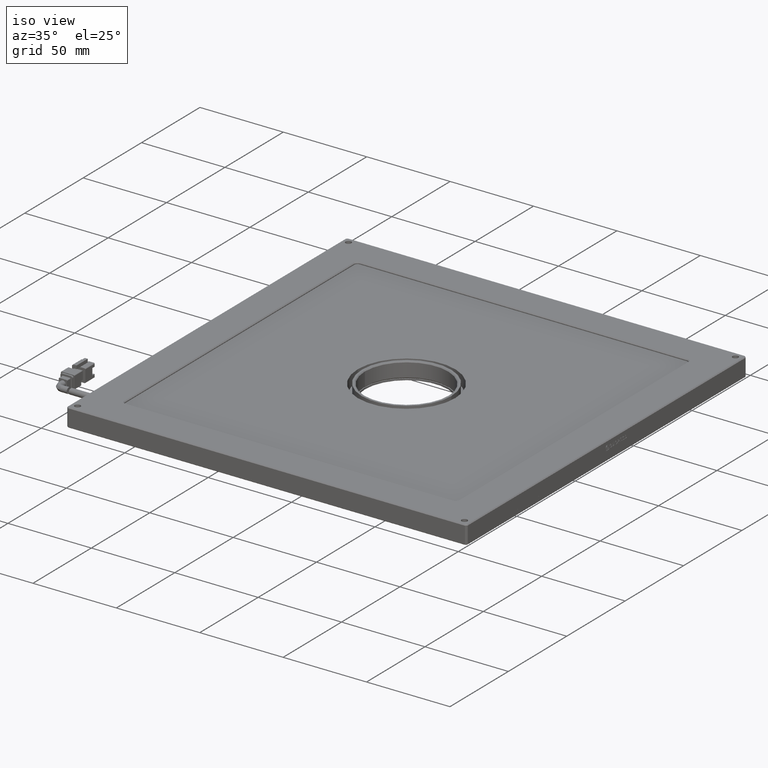
[diagram: clean part render]
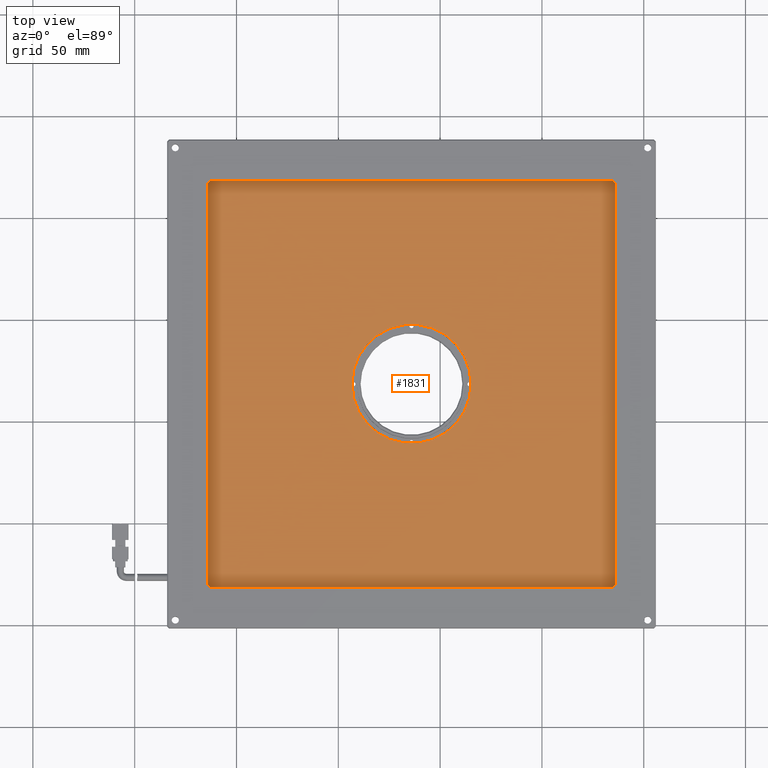
[diagram: tour spotlight — one face highlighted and labeled with its STEP entity id]
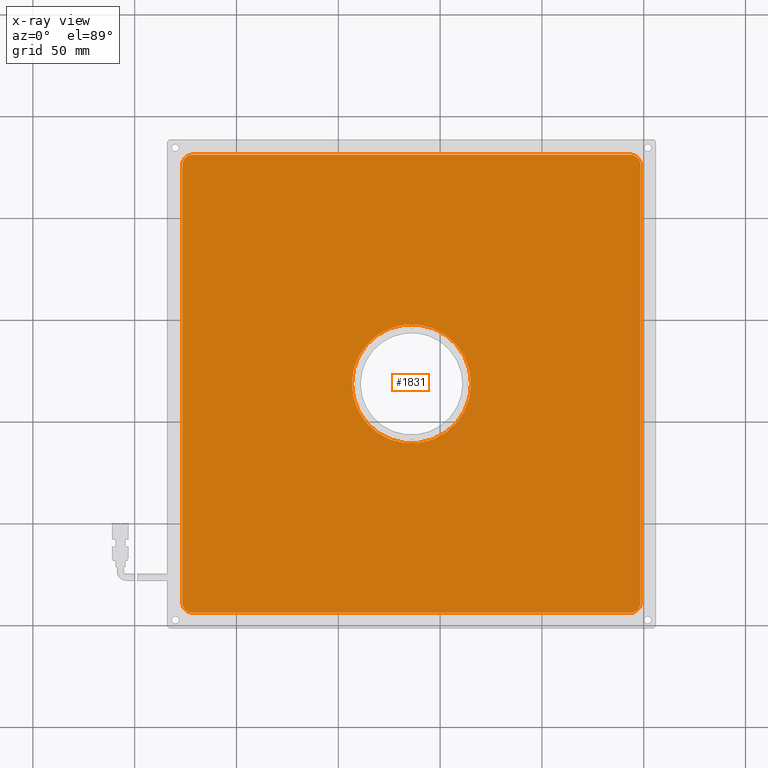
[diagram: x-ray of the same camera — body ghosted, this tour face saturated]
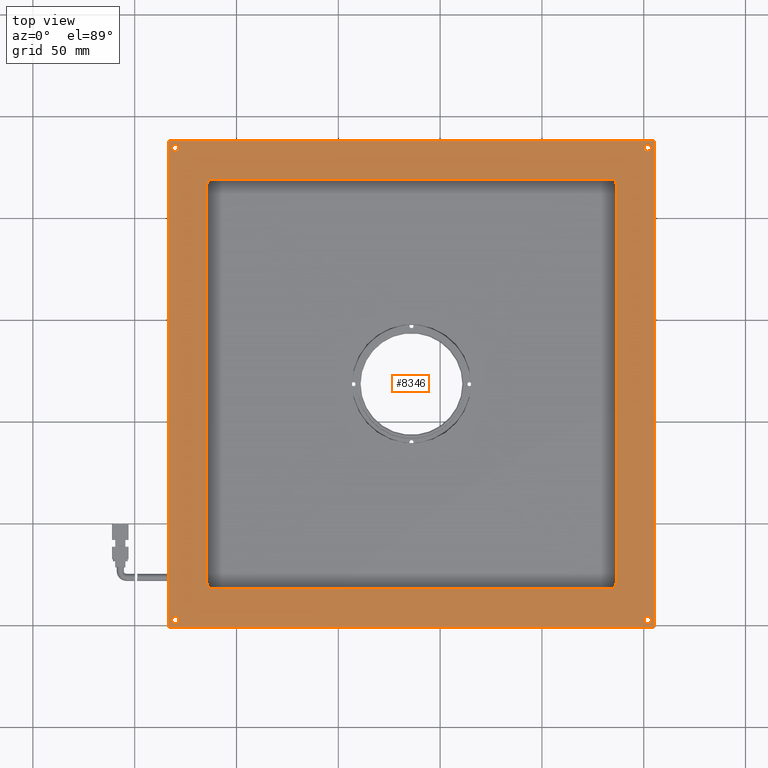
[diagram: tour spotlight — one face highlighted and labeled with its STEP entity id]
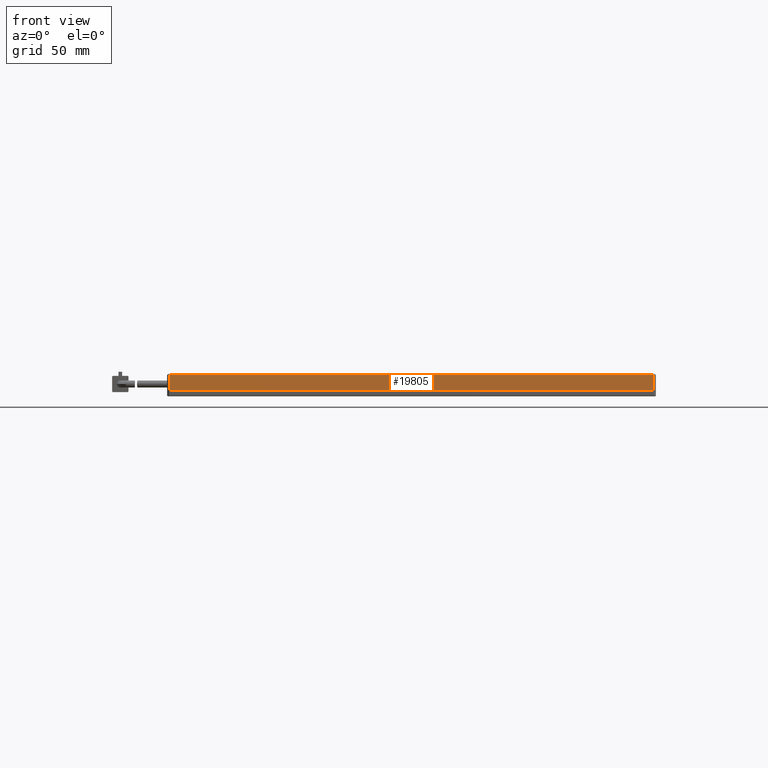
[diagram: tour spotlight — one face highlighted and labeled with its STEP entity id]
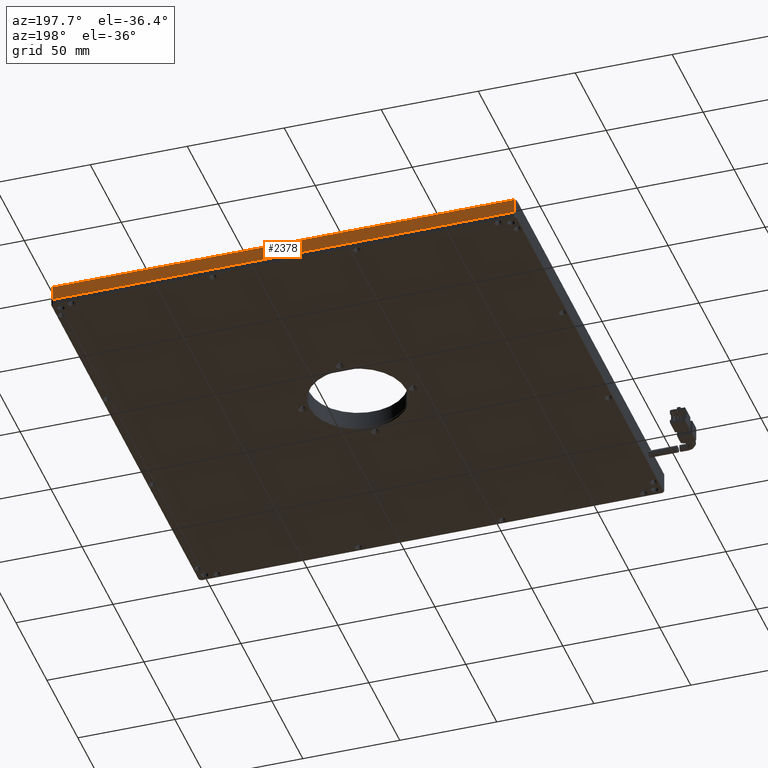
[diagram: tour spotlight — one face highlighted and labeled with its STEP entity id]
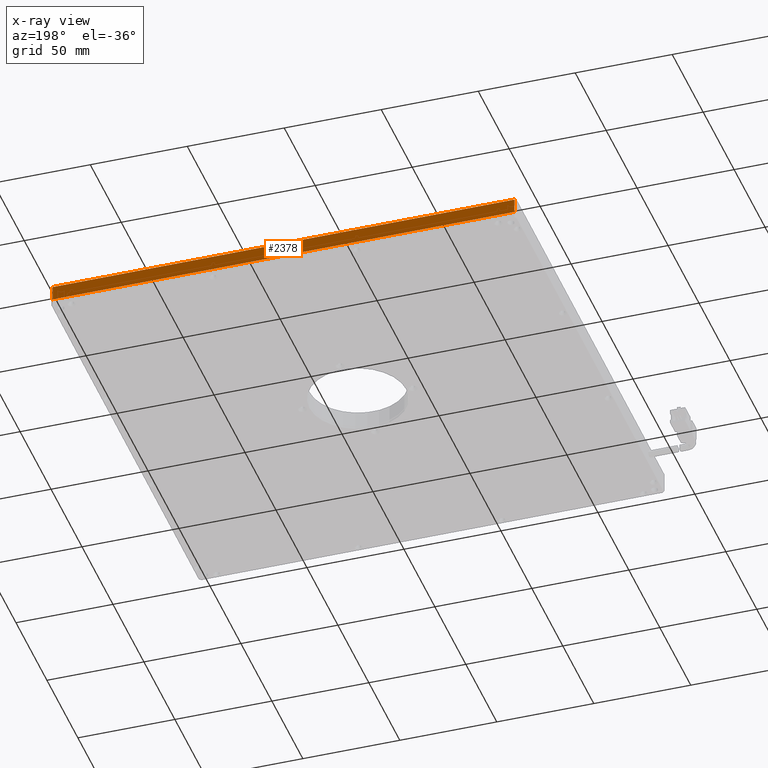
[diagram: x-ray of the same camera — body ghosted, this tour face saturated]
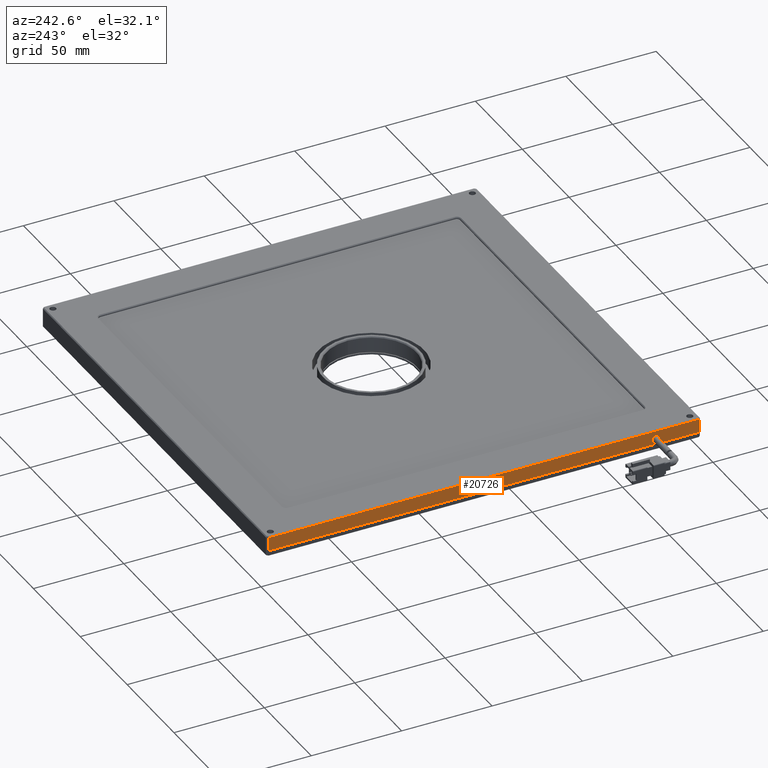
[diagram: tour spotlight — one face highlighted and labeled with its STEP entity id]
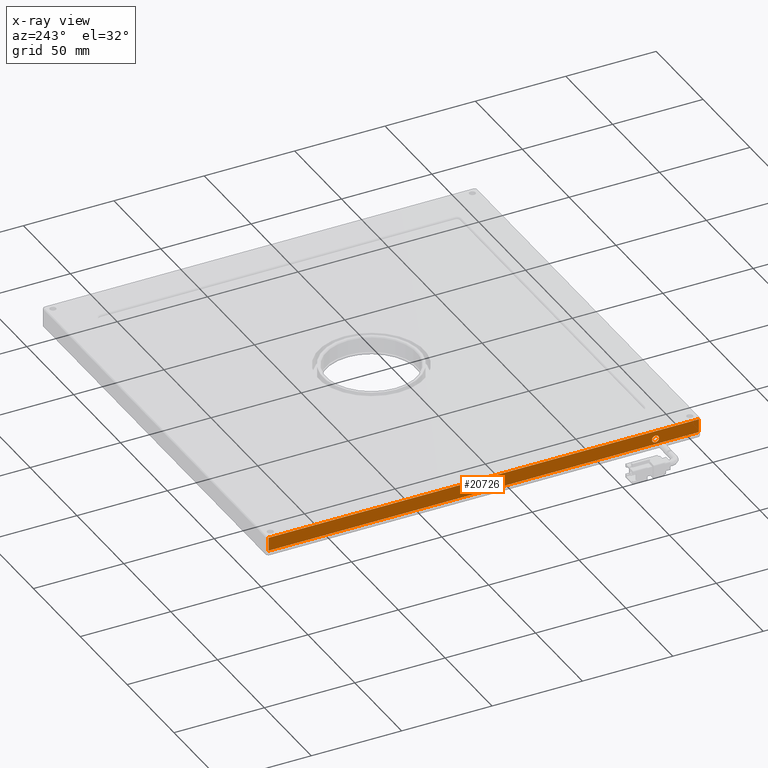
[diagram: x-ray of the same camera — body ghosted, this tour face saturated]
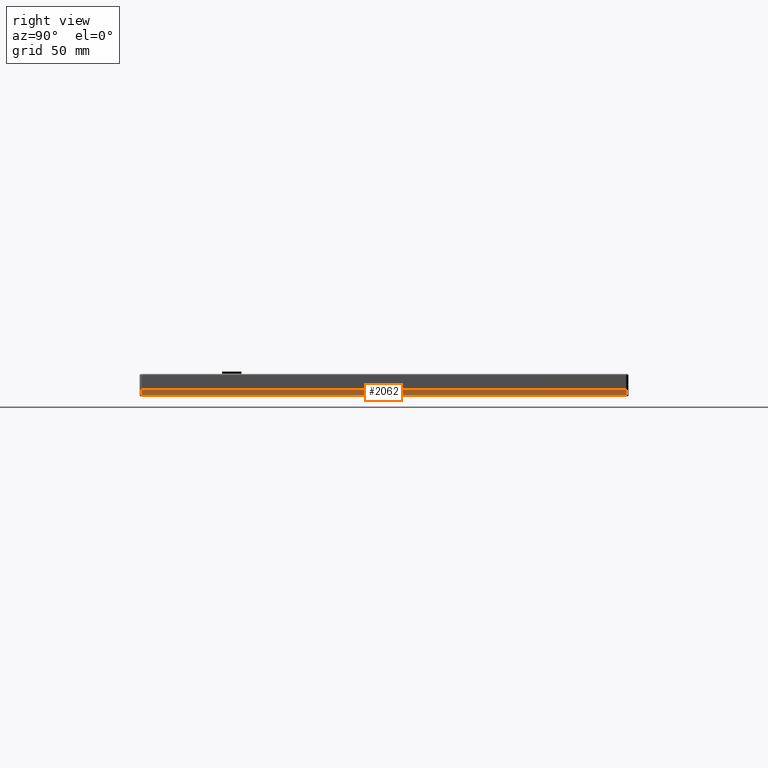
[diagram: tour spotlight — one face highlighted and labeled with its STEP entity id]
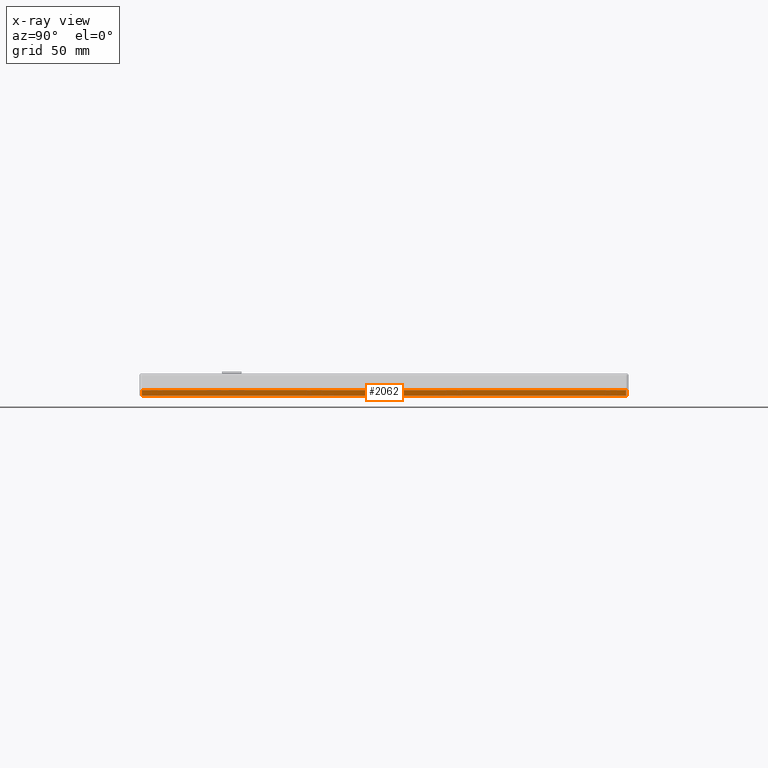
[diagram: x-ray of the same camera — body ghosted, this tour face saturated]
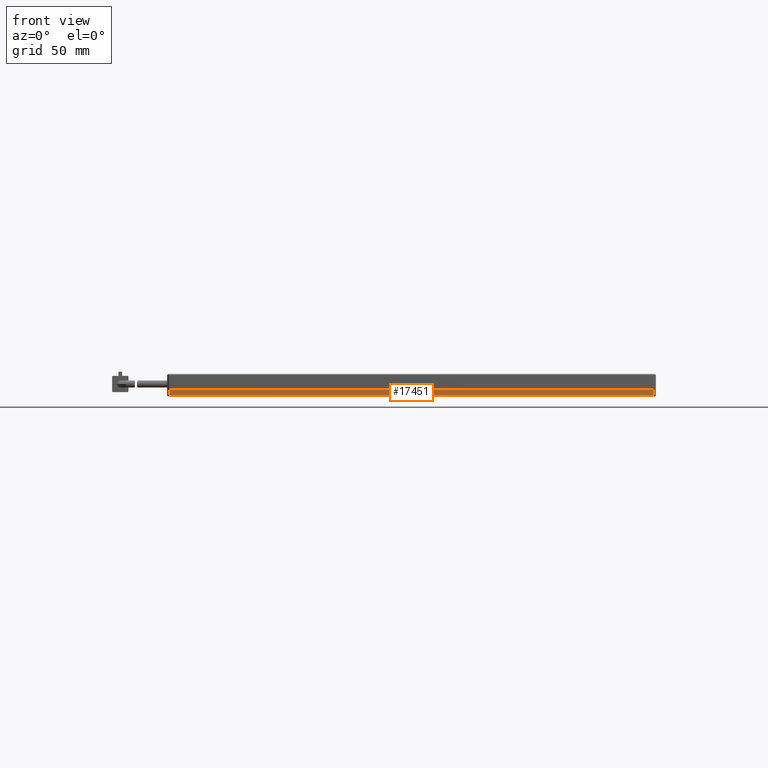
[diagram: tour spotlight — one face highlighted and labeled with its STEP entity id]
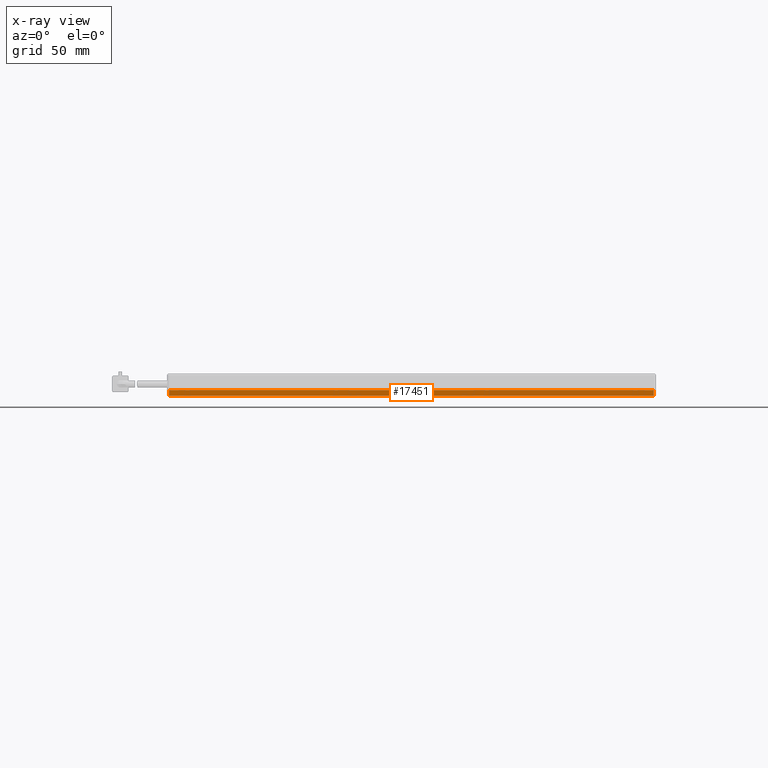
[diagram: x-ray of the same camera — body ghosted, this tour face saturated]
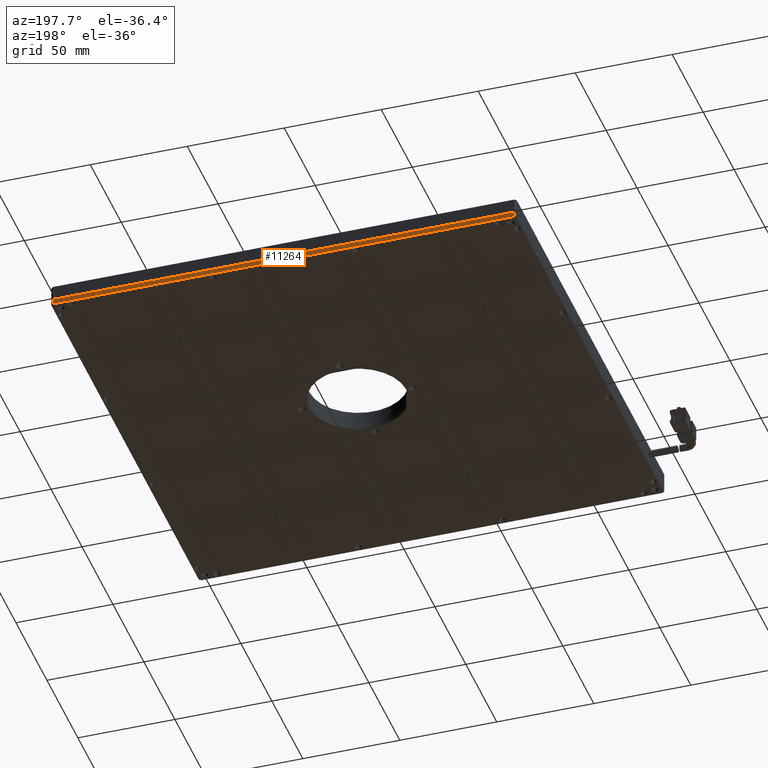
[diagram: tour spotlight — one face highlighted and labeled with its STEP entity id]
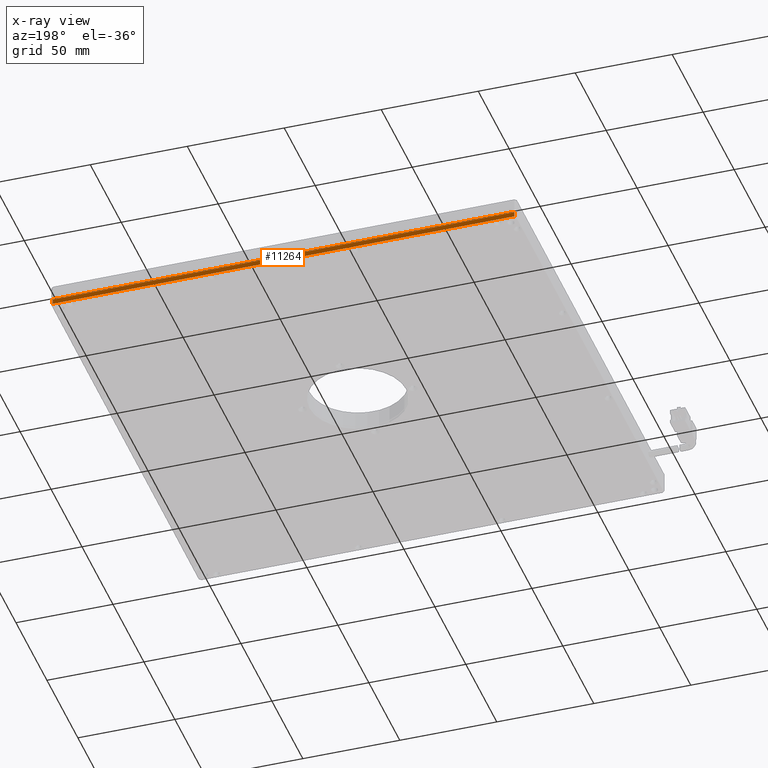
[diagram: x-ray of the same camera — body ghosted, this tour face saturated]
A machine part: a face-by-face anatomy tour. The part has 509 B-rep faces; the first image is the clean iso view, then the 8 largest visible faces are spotlighted one at a time (largest first), each with its STEP entity span.

Face 1 — top view, entity #1831. An x-ray twin of the same camera follows (body ghosted, this face saturated) — the face is partly hidden behind the body. In plain terms, the highlighted planar face has unit normal (-0, 0, 1).
Definition (entity closure, byte-faithful):
#25 = ORIENTED_EDGE ( 'NONE', *, *, #20548, .F. ) ;
#272 = ORIENTED_EDGE ( 'NONE', *, *, #9758, .F. ) ;
#436 = VECTOR ( 'NONE', #4403, 1000.000000000000000 ) ;
#657 = PLANE ( 'NONE',  #6603 ) ;
#1144 = DIRECTION ( 'NONE',  ( 1.233581138472396000E-016, -1.000000000000000000, -0.0000000000000000000 ) ) ;
#1699 = VERTEX_POINT ( 'NONE', #8887 ) ;
#1703 = EDGE_CURVE ( 'NONE', #2619, #16302, #7136, .T. ) ;
#1823 = LINE ( 'NONE', #4298, #19289 ) ;
#1831 = ADVANCED_FACE ( 'NONE', ( #9253, #4723 ), #657, .T. ) ;
#2348 = AXIS2_PLACEMENT_3D ( 'NONE', #6001, #19265, #12731 ) ;
#2404 = DIRECTION ( 'NONE',  ( -1.000000000000000000, 0.0000000000000000000, 0.0000000000000000000 ) ) ;
#2619 = VERTEX_POINT ( 'NONE', #8253 ) ;
#2762 = AXIS2_PLACEMENT_3D ( 'NONE', #20667, #8963, #10523 ) ;
#4199 = DIRECTION ( 'NONE',  ( -2.467162276944791900E-016, 1.000000000000000000, -0.0000000000000000000 ) ) ;
#4235 = VERTEX_POINT ( 'NONE', #13963 ) ;
#4298 = CARTESIAN_POINT ( 'NONE',  ( -126.5528944548791700, 131.0437720533321100, 3.800000000000003800 ) ) ;
#4333 = ORIENTED_EDGE ( 'NONE', *, *, #1703, .F. ) ;
#4383 = VECTOR ( 'NONE', #7783, 1000.000000000000000 ) ;
#4403 = DIRECTION ( 'NONE',  ( -1.000000000000000000, -0.0000000000000000000, -0.0000000000000000000 ) ) ;
#4414 = DIRECTION ( 'NONE',  ( -1.000000000000000000, 0.0000000000000000000, 0.0000000000000000000 ) ) ;
#4723 = FACE_BOUND ( 'NONE', #14666, .T. ) ;
#4777 = VERTEX_POINT ( 'NONE', #17431 ) ;
#4935 = CIRCLE ( 'NONE', #14553, 4.999999999999990200 ) ;
#5222 = VERTEX_POINT ( 'NONE', #15345 ) ;
#5340 = VERTEX_POINT ( 'NONE', #5346 ) ;
#5346 = CARTESIAN_POINT ( 'NONE',  ( -43.30289445487915900, 18.54377205333211600, 3.800000000000003800 ) ) ;
#6001 = CARTESIAN_POINT ( 'NONE',  ( -14.05289445487915900, 18.54377205333211600, 3.800000000000003800 ) ) ;
#6383 = EDGE_CURVE ( 'NONE', #1699, #18363, #1823, .T. ) ;
#6464 = LINE ( 'NONE', #17844, #4383 ) ;
#6603 = AXIS2_PLACEMENT_3D ( 'NONE', #20901, #12500, #10753 ) ;
#6728 = ORIENTED_EDGE ( 'NONE', *, *, #20623, .T. ) ;
#7136 = CIRCLE ( 'NONE', #2762, 5.000000000000004400 ) ;
#7273 = CARTESIAN_POINT ( 'NONE',  ( 93.44710554512087700, -88.95622794666790900, 3.800000000000003800 ) ) ;
#7374 = LINE ( 'NONE', #21391, #14012 ) ;
#7517 = CIRCLE ( 'NONE', #19877, 29.25000000000000000 ) ;
#7783 = DIRECTION ( 'NONE',  ( 1.000000000000000000, 0.0000000000000000000, -0.0000000000000000000 ) ) ;
#8253 = CARTESIAN_POINT ( 'NONE',  ( 93.44710554512082000, 131.0437720533321100, 3.800000000000003800 ) ) ;
#8505 = CARTESIAN_POINT ( 'NONE',  ( -121.5528944548791100, -88.95622794666789400, 3.800000000000003800 ) ) ;
#8875 = CARTESIAN_POINT ( 'NONE',  ( -121.5528944548791400, 126.0437720533321200, 3.800000000000003800 ) ) ;
#8887 = CARTESIAN_POINT ( 'NONE',  ( -126.5528944548791700, 126.0437720533321200, 3.800000000000003800 ) ) ;
#8932 = EDGE_CURVE ( 'NONE', #5340, #4235, #17318, .T. ) ;
#8959 = ORIENTED_EDGE ( 'NONE', *, *, #12967, .T. ) ;
#8963 = DIRECTION ( 'NONE',  ( 0.0000000000000000000, 0.0000000000000000000, -1.000000000000000000 ) ) ;
#9253 = FACE_OUTER_BOUND ( 'NONE', #14583, .T. ) ;
#9471 = CARTESIAN_POINT ( 'NONE',  ( -14.05289445487915900, 18.54377205333211600, 3.800000000000003800 ) ) ;
#9522 = ORIENTED_EDGE ( 'NONE', *, *, #18239, .T. ) ;
#9758 = EDGE_CURVE ( 'NONE', #21073, #4777, #17106, .T. ) ;
#10523 = DIRECTION ( 'NONE',  ( -1.000000000000000000, 0.0000000000000000000, 0.0000000000000000000 ) ) ;
#10660 = DIRECTION ( 'NONE',  ( 0.0000000000000000000, 0.0000000000000000000, -1.000000000000000000 ) ) ;
#10753 = DIRECTION ( 'NONE',  ( 1.000000000000000000, 0.0000000000000000000, 0.0000000000000000000 ) ) ;
#10761 = AXIS2_PLACEMENT_3D ( 'NONE', #7273, #12394, #2404 ) ;
#10992 = CARTESIAN_POINT ( 'NONE',  ( 98.44710554512089100, -88.95622794666790900, 3.800000000000003800 ) ) ;
#11165 = DIRECTION ( 'NONE',  ( -0.0000000000000000000, -0.0000000000000000000, -1.000000000000000000 ) ) ;
#11955 = ORIENTED_EDGE ( 'NONE', *, *, #20432, .F. ) ;
#12053 = DIRECTION ( 'NONE',  ( -1.000000000000000000, 0.0000000000000000000, 0.0000000000000000000 ) ) ;
#12277 = DIRECTION ( 'NONE',  ( -1.000000000000000000, 0.0000000000000000000, 0.0000000000000000000 ) ) ;
#12394 = DIRECTION ( 'NONE',  ( 0.0000000000000000000, 0.0000000000000000000, -1.000000000000000000 ) ) ;
#12500 = DIRECTION ( 'NONE',  ( -0.0000000000000000000, 0.0000000000000000000, 1.000000000000000000 ) ) ;
#12731 = DIRECTION ( 'NONE',  ( -1.000000000000000000, 0.0000000000000000000, 0.0000000000000000000 ) ) ;
#12967 = EDGE_CURVE ( 'NONE', #21073, #16302, #7374, .T. ) ;
#13963 = CARTESIAN_POINT ( 'NONE',  ( 15.19710554512084300, 18.54377205333212000, 3.800000000000003800 ) ) ;
#14012 = VECTOR ( 'NONE', #4199, 1000.000000000000000 ) ;
#14121 = ORIENTED_EDGE ( 'NONE', *, *, #14606, .T. ) ;
#14553 = AXIS2_PLACEMENT_3D ( 'NONE', #8875, #10660, #12277 ) ;
#14583 = EDGE_LOOP ( 'NONE', ( #16727, #11955, #9522, #272, #8959, #4333, #6728, #25 ) ) ;
#14606 = EDGE_CURVE ( 'NONE', #4235, #5340, #7517, .T. ) ;
#14666 = EDGE_LOOP ( 'NONE', ( #18855, #14121 ) ) ;
#15003 = LINE ( 'NONE', #16104, #436 ) ;
#15345 = CARTESIAN_POINT ( 'NONE',  ( -121.5528944548791400, 131.0437720533321100, 3.800000000000003800 ) ) ;
#15374 = DIRECTION ( 'NONE',  ( -0.0000000000000000000, 0.0000000000000000000, -1.000000000000000000 ) ) ;
#16103 = AXIS2_PLACEMENT_3D ( 'NONE', #8505, #15374, #12053 ) ;
#16104 = CARTESIAN_POINT ( 'NONE',  ( -126.5528944548791700, 131.0437720533321100, 3.800000000000003800 ) ) ;
#16302 = VERTEX_POINT ( 'NONE', #16654 ) ;
#16654 = CARTESIAN_POINT ( 'NONE',  ( 98.44710554512083400, 126.0437720533321200, 3.800000000000003800 ) ) ;
#16727 = ORIENTED_EDGE ( 'NONE', *, *, #6383, .T. ) ;
#17106 = CIRCLE ( 'NONE', #10761, 5.000000000000004400 ) ;
#17318 = CIRCLE ( 'NONE', #2348, 29.25000000000000000 ) ;
#17431 = CARTESIAN_POINT ( 'NONE',  ( 93.44710554512087700, -93.95622794666790900, 3.800000000000003800 ) ) ;
#17844 = CARTESIAN_POINT ( 'NONE',  ( -126.5528944548791400, -93.95622794666789400, 3.800000000000003800 ) ) ;
#18198 = CARTESIAN_POINT ( 'NONE',  ( -126.5528944548791100, -88.95622794666790900, 3.800000000000003800 ) ) ;
#18239 = EDGE_CURVE ( 'NONE', #21343, #4777, #6464, .T. ) ;
#18363 = VERTEX_POINT ( 'NONE', #18198 ) ;
#18368 = CARTESIAN_POINT ( 'NONE',  ( -121.5528944548791100, -93.95622794666789400, 3.800000000000003800 ) ) ;
#18855 = ORIENTED_EDGE ( 'NONE', *, *, #8932, .T. ) ;
#19265 = DIRECTION ( 'NONE',  ( -0.0000000000000000000, -0.0000000000000000000, -1.000000000000000000 ) ) ;
#19289 = VECTOR ( 'NONE', #1144, 1000.000000000000000 ) ;
#19877 = AXIS2_PLACEMENT_3D ( 'NONE', #9471, #11165, #4414 ) ;
#20337 = CIRCLE ( 'NONE', #16103, 4.999999999999990200 ) ;
#20432 = EDGE_CURVE ( 'NONE', #21343, #18363, #20337, .T. ) ;
#20548 = EDGE_CURVE ( 'NONE', #1699, #5222, #4935, .T. ) ;
#20623 = EDGE_CURVE ( 'NONE', #2619, #5222, #15003, .T. ) ;
#20667 = CARTESIAN_POINT ( 'NONE',  ( 93.44710554512082000, 126.0437720533321200, 3.800000000000003800 ) ) ;
#20901 = CARTESIAN_POINT ( 'NONE',  ( -126.5528944548791400, -93.95622794666789400, 3.800000000000003800 ) ) ;
#21073 = VERTEX_POINT ( 'NONE', #10992 ) ;
#21343 = VERTEX_POINT ( 'NONE', #18368 ) ;
#21391 = CARTESIAN_POINT ( 'NONE',  ( 98.44710554512083400, 131.0437720533321100, 3.800000000000003800 ) ) ;

Face 2 — top view, entity #8346. In plain terms, the highlighted planar face has unit normal (0, 0, -1).
Definition (entity closure, byte-faithful):
#49 = VERTEX_POINT ( 'NONE', #12541 ) ;
#337 = VERTEX_POINT ( 'NONE', #21654 ) ;
#379 = DIRECTION ( 'NONE',  ( -1.000000000000000000, 0.0000000000000000000, 0.0000000000000000000 ) ) ;
#538 = AXIS2_PLACEMENT_3D ( 'NONE', #2596, #12871, #16068 ) ;
#591 = LINE ( 'NONE', #16450, #21009 ) ;
#608 = VECTOR ( 'NONE', #18544, 1000.000000000000000 ) ;
#687 = AXIS2_PLACEMENT_3D ( 'NONE', #12243, #2474, #7700 ) ;
#690 = VERTEX_POINT ( 'NONE', #19048 ) ;
#702 = FACE_BOUND ( 'NONE', #11681, .T. ) ;
#900 = VERTEX_POINT ( 'NONE', #5214 ) ;
#1052 = VERTEX_POINT ( 'NONE', #12420 ) ;
#1243 = FACE_OUTER_BOUND ( 'NONE', #3507, .T. ) ;
#1442 = DIRECTION ( 'NONE',  ( -0.7071067811865613400, -0.7071067811865335800, 0.0000000000000000000 ) ) ;
#1551 = CARTESIAN_POINT ( 'NONE',  ( -134.0546296296296000, -81.95796296296292400, 5.000000000000000900 ) ) ;
#1579 = VECTOR ( 'NONE', #9306, 1000.000000000000100 ) ;
#1669 = EDGE_CURVE ( 'NONE', #17858, #5772, #10611, .T. ) ;
#1701 = ORIENTED_EDGE ( 'NONE', *, *, #1669, .F. ) ;
#1858 = VECTOR ( 'NONE', #14362, 1000.000000000000000 ) ;
#2370 = DIRECTION ( 'NONE',  ( 0.0000000000000000000, 0.0000000000000000000, 1.000000000000000000 ) ) ;
#2467 = EDGE_LOOP ( 'NONE', ( #4050, #8623 ) ) ;
#2474 = DIRECTION ( 'NONE',  ( 0.0000000000000000000, 0.0000000000000000000, 1.000000000000000000 ) ) ;
#2482 = EDGE_CURVE ( 'NONE', #19166, #9570, #16604, .T. ) ;
#2557 = FACE_BOUND ( 'NONE', #13338, .T. ) ;
#2562 = LINE ( 'NONE', #3823, #19768 ) ;
#2596 = CARTESIAN_POINT ( 'NONE',  ( -130.0546296296296000, 134.5420370370370600, 5.000000000000000900 ) ) ;
#2659 = ORIENTED_EDGE ( 'NONE', *, *, #10223, .F. ) ;
#2690 = LINE ( 'NONE', #9052, #11684 ) ;
#2751 = VERTEX_POINT ( 'NONE', #17046 ) ;
#2907 = CARTESIAN_POINT ( 'NONE',  ( 105.4453703703704700, -100.2508561817764800, 5.000000000000000900 ) ) ;
#2924 = EDGE_CURVE ( 'NONE', #15962, #20111, #2562, .T. ) ;
#2939 = ORIENTED_EDGE ( 'NONE', *, *, #12178, .F. ) ;
#2997 = DIRECTION ( 'NONE',  ( -0.0000000000000000000, -1.000000000000000000, -0.0000000000000000000 ) ) ;
#3026 = DIRECTION ( 'NONE',  ( 0.0000000000000000000, 0.0000000000000000000, 1.000000000000000000 ) ) ;
#3028 = CARTESIAN_POINT ( 'NONE',  ( 103.6953703703704100, 134.5420370370370600, 5.000000000000000900 ) ) ;
#3191 = CARTESIAN_POINT ( 'NONE',  ( 104.7382635891839400, -100.9579629629629900, 5.000000000000000900 ) ) ;
#3327 = FACE_BOUND ( 'NONE', #19683, .T. ) ;
#3399 = EDGE_CURVE ( 'NONE', #690, #5072, #11763, .T. ) ;
#3507 = EDGE_LOOP ( 'NONE', ( #6377, #14981, #2939, #14688, #12240, #3949, #19928, #19646 ) ) ;
#3823 = CARTESIAN_POINT ( 'NONE',  ( -134.0546296296296000, 138.0420370370371200, 5.000000000000000900 ) ) ;
#3856 = ORIENTED_EDGE ( 'NONE', *, *, #21709, .F. ) ;
#3904 = EDGE_CURVE ( 'NONE', #5772, #17858, #13675, .T. ) ;
#3942 = DIRECTION ( 'NONE',  ( 0.0000000000000000000, 1.000000000000000000, 0.0000000000000000000 ) ) ;
#3949 = ORIENTED_EDGE ( 'NONE', *, *, #19470, .F. ) ;
#3985 = EDGE_CURVE ( 'NONE', #18061, #6326, #14741, .T. ) ;
#4033 = CIRCLE ( 'NONE', #6321, 2.500000000015462300 ) ;
#4038 = CARTESIAN_POINT ( 'NONE',  ( -130.0546296296296300, -97.45796296296293800, 5.000000000000000900 ) ) ;
#4047 = AXIS2_PLACEMENT_3D ( 'NONE', #6475, #3026, #16756 ) ;
#4050 = ORIENTED_EDGE ( 'NONE', *, *, #2482, .F. ) ;
#4618 = CIRCLE ( 'NONE', #17090, 1.750000000000001600 ) ;
#4639 = ORIENTED_EDGE ( 'NONE', *, *, #18127, .F. ) ;
#4675 = DIRECTION ( 'NONE',  ( 0.7071067811865613400, -0.7071067811865335800, 0.0000000000000000000 ) ) ;
#4689 = LINE ( 'NONE', #13038, #14779 ) ;
#4765 = CARTESIAN_POINT ( 'NONE',  ( -130.0546296296296000, 134.5420370370370600, 5.000000000000000900 ) ) ;
#4856 = CARTESIAN_POINT ( 'NONE',  ( 83.94537037037039800, 116.5420370370370600, 4.999999999981356200 ) ) ;
#4916 = DIRECTION ( 'NONE',  ( 1.000000000000000000, 0.0000000000000000000, 0.0000000000000000000 ) ) ;
#4920 = VECTOR ( 'NONE', #13297, 1000.000000000000000 ) ;
#5006 = VERTEX_POINT ( 'NONE', #14836 ) ;
#5068 = EDGE_CURVE ( 'NONE', #20111, #11657, #591, .T. ) ;
#5072 = VERTEX_POINT ( 'NONE', #21735 ) ;
#5214 = CARTESIAN_POINT ( 'NONE',  ( 86.44537037037314100, 116.5420370370370600, 4.999999999986017400 ) ) ;
#5316 = CARTESIAN_POINT ( 'NONE',  ( 100.1953703703704100, -97.45796296296295200, 5.000000000000000900 ) ) ;
#5399 = ORIENTED_EDGE ( 'NONE', *, *, #21030, .F. ) ;
#5412 = DIRECTION ( 'NONE',  ( 0.0000000000000000000, 0.0000000000000000000, 1.000000000000000000 ) ) ;
#5567 = AXIS2_PLACEMENT_3D ( 'NONE', #14044, #19354, #19288 ) ;
#5682 = ORIENTED_EDGE ( 'NONE', *, *, #11540, .F. ) ;
#5772 = VERTEX_POINT ( 'NONE', #5316 ) ;
#5785 = VERTEX_POINT ( 'NONE', #8679 ) ;
#5791 = DIRECTION ( 'NONE',  ( -1.000000000000000000, 0.0000000000000000000, 0.0000000000000000000 ) ) ;
#5863 = VECTOR ( 'NONE', #1442, 1000.000000000000100 ) ;
#5969 = AXIS2_PLACEMENT_3D ( 'NONE', #13856, #8834, #379 ) ;
#6271 = DIRECTION ( 'NONE',  ( 0.0000000000000000000, 0.0000000000000000000, 1.000000000000000000 ) ) ;
#6321 = AXIS2_PLACEMENT_3D ( 'NONE', #4856, #6271, #18119 ) ;
#6326 = VERTEX_POINT ( 'NONE', #14237 ) ;
#6356 = EDGE_CURVE ( 'NONE', #13264, #337, #4689, .T. ) ;
#6359 = VERTEX_POINT ( 'NONE', #21425 ) ;
#6377 = ORIENTED_EDGE ( 'NONE', *, *, #18512, .F. ) ;
#6475 = CARTESIAN_POINT ( 'NONE',  ( 101.9453703703704100, -97.45796296296295200, 5.000000000000000900 ) ) ;
#6535 = CARTESIAN_POINT ( 'NONE',  ( -133.5546296296296600, 137.3349302558505400, 5.000000000000002700 ) ) ;
#6654 = VERTEX_POINT ( 'NONE', #16926 ) ;
#7282 = DIRECTION ( 'NONE',  ( 0.0000000000000000000, 0.0000000000000000000, 1.000000000000000000 ) ) ;
#7538 = VERTEX_POINT ( 'NONE', #3191 ) ;
#7700 = DIRECTION ( 'NONE',  ( 1.000000000000000000, 0.0000000000000000000, 0.0000000000000000000 ) ) ;
#8062 = EDGE_CURVE ( 'NONE', #5006, #20791, #18437, .T. ) ;
#8346 = ADVANCED_FACE ( 'NONE', ( #2557, #3327, #21129, #14472, #1243, #702 ), #19225, .F. ) ;
#8443 = LINE ( 'NONE', #14693, #16625 ) ;
#8572 = CARTESIAN_POINT ( 'NONE',  ( -133.5546296296296600, 138.5420370370370300, 5.000000000000000900 ) ) ;
#8592 = DIRECTION ( 'NONE',  ( -1.000000000000000000, 0.0000000000000000000, 0.0000000000000000000 ) ) ;
#8623 = ORIENTED_EDGE ( 'NONE', *, *, #14035, .F. ) ;
#8679 = CARTESIAN_POINT ( 'NONE',  ( -132.8475228484430800, -100.9579629629629900, 5.000000000000002700 ) ) ;
#8834 = DIRECTION ( 'NONE',  ( 0.0000000000000000000, 0.0000000000000000000, 1.000000000000000000 ) ) ;
#8907 = CIRCLE ( 'NONE', #5969, 1.750000000000001600 ) ;
#9052 = CARTESIAN_POINT ( 'NONE',  ( 86.44537037037039800, 138.5420370370370300, 5.000000000000000900 ) ) ;
#9306 = DIRECTION ( 'NONE',  ( -0.7071067811865474600, 0.7071067811865474600, 0.0000000000000000000 ) ) ;
#9417 = CARTESIAN_POINT ( 'NONE',  ( 105.4453703703705000, 137.3349302558505700, 4.999999999999986700 ) ) ;
#9570 = VERTEX_POINT ( 'NONE', #3028 ) ;
#9613 = AXIS2_PLACEMENT_3D ( 'NONE', #17810, #2370, #10815 ) ;
#9678 = EDGE_CURVE ( 'NONE', #6359, #6654, #10934, .T. ) ;
#9893 = CIRCLE ( 'NONE', #19757, 2.500000000045909900 ) ;
#10111 = ORIENTED_EDGE ( 'NONE', *, *, #3904, .F. ) ;
#10145 = CARTESIAN_POINT ( 'NONE',  ( -112.0546296296296200, 116.5420370370370600, 5.000000000038199700 ) ) ;
#10223 = EDGE_CURVE ( 'NONE', #337, #2751, #18721, .T. ) ;
#10225 = DIRECTION ( 'NONE',  ( 1.000000000000000000, 0.0000000000000000000, 0.0000000000000000000 ) ) ;
#10611 = CIRCLE ( 'NONE', #14124, 1.750000000000001600 ) ;
#10727 = CARTESIAN_POINT ( 'NONE',  ( 100.1953703703704100, 134.5420370370370600, 5.000000000000000900 ) ) ;
#10815 = DIRECTION ( 'NONE',  ( -1.000000000000000000, 0.0000000000000000000, 0.0000000000000000000 ) ) ;
#10934 = LINE ( 'NONE', #1551, #608 ) ;
#10959 = CARTESIAN_POINT ( 'NONE',  ( -114.5546296296295900, 138.5420370370370300, 5.000000000000000900 ) ) ;
#11540 = EDGE_CURVE ( 'NONE', #18121, #900, #2690, .T. ) ;
#11574 = LINE ( 'NONE', #11946, #13175 ) ;
#11657 = VERTEX_POINT ( 'NONE', #9417 ) ;
#11675 = ORIENTED_EDGE ( 'NONE', *, *, #14730, .F. ) ;
#11681 = EDGE_LOOP ( 'NONE', ( #11675, #13460, #2659, #17294, #13882, #5682, #4639, #11695 ) ) ;
#11684 = VECTOR ( 'NONE', #3942, 1000.000000000000000 ) ;
#11695 = ORIENTED_EDGE ( 'NONE', *, *, #9678, .F. ) ;
#11763 = CIRCLE ( 'NONE', #20308, 1.750000000000001600 ) ;
#11946 = CARTESIAN_POINT ( 'NONE',  ( -134.0546296296296000, -100.9579629629629900, 5.000000000000000900 ) ) ;
#12178 = EDGE_CURVE ( 'NONE', #5785, #5006, #13218, .T. ) ;
#12240 = ORIENTED_EDGE ( 'NONE', *, *, #15155, .F. ) ;
#12243 = CARTESIAN_POINT ( 'NONE',  ( 83.94537037037042600, -79.45796296296295200, 4.999999999981356200 ) ) ;
#12420 = CARTESIAN_POINT ( 'NONE',  ( -114.5546296296300400, -79.45796296296295200, 5.000000000028650000 ) ) ;
#12476 = DIRECTION ( 'NONE',  ( 1.000000000000000000, -0.0000000000000000000, 0.0000000000000000000 ) ) ;
#12541 = CARTESIAN_POINT ( 'NONE',  ( 105.4453703703705000, -100.2508561817765600, 4.999999999999993800 ) ) ;
#12675 = ORIENTED_EDGE ( 'NONE', *, *, #3399, .F. ) ;
#12871 = DIRECTION ( 'NONE',  ( 0.0000000000000000000, 0.0000000000000000000, 1.000000000000000000 ) ) ;
#12952 = ORIENTED_EDGE ( 'NONE', *, *, #3985, .F. ) ;
#13038 = CARTESIAN_POINT ( 'NONE',  ( -134.0546296296296000, 119.0420370370370300, 5.000000000000000900 ) ) ;
#13056 = CARTESIAN_POINT ( 'NONE',  ( 103.6953703703704100, -97.45796296296295200, 5.000000000000000900 ) ) ;
#13116 = AXIS2_PLACEMENT_3D ( 'NONE', #4765, #20288, #16833 ) ;
#13175 = VECTOR ( 'NONE', #13588, 1000.000000000000000 ) ;
#13218 = LINE ( 'NONE', #16112, #1579 ) ;
#13264 = VERTEX_POINT ( 'NONE', #16972 ) ;
#13297 = DIRECTION ( 'NONE',  ( 0.0000000000000000000, 1.000000000000000000, 0.0000000000000000000 ) ) ;
#13338 = EDGE_LOOP ( 'NONE', ( #10111, #1701 ) ) ;
#13460 = ORIENTED_EDGE ( 'NONE', *, *, #17118, .F. ) ;
#13469 = CARTESIAN_POINT ( 'NONE',  ( -133.5546296296296600, 137.3349302558505400, 5.000000000000000900 ) ) ;
#13537 = DIRECTION ( 'NONE',  ( 0.7071067811865197100, 0.7071067811865752200, 0.0000000000000000000 ) ) ;
#13588 = DIRECTION ( 'NONE',  ( -1.000000000000000000, 0.0000000000000000000, -0.0000000000000000000 ) ) ;
#13675 = CIRCLE ( 'NONE', #4047, 1.750000000000001600 ) ;
#13856 = CARTESIAN_POINT ( 'NONE',  ( 101.9453703703704100, 134.5420370370370600, 5.000000000000000900 ) ) ;
#13882 = ORIENTED_EDGE ( 'NONE', *, *, #21893, .F. ) ;
#14035 = EDGE_CURVE ( 'NONE', #9570, #19166, #8907, .T. ) ;
#14044 = CARTESIAN_POINT ( 'NONE',  ( -134.0546296296296000, 138.5420370370370300, 5.000000000000000900 ) ) ;
#14124 = AXIS2_PLACEMENT_3D ( 'NONE', #20594, #17306, #15623 ) ;
#14237 = CARTESIAN_POINT ( 'NONE',  ( -131.8046296296296000, 134.5420370370370600, 5.000000000000000900 ) ) ;
#14362 = DIRECTION ( 'NONE',  ( -0.0000000000000000000, -1.000000000000000000, -0.0000000000000000000 ) ) ;
#14472 = FACE_BOUND ( 'NONE', #2467, .T. ) ;
#14599 = EDGE_LOOP ( 'NONE', ( #3856, #12952 ) ) ;
#14688 = ORIENTED_EDGE ( 'NONE', *, *, #20098, .F. ) ;
#14693 = CARTESIAN_POINT ( 'NONE',  ( 105.4453703703704700, 138.5420370370370300, 5.000000000000000900 ) ) ;
#14730 = EDGE_CURVE ( 'NONE', #1052, #6359, #9893, .T. ) ;
#14741 = CIRCLE ( 'NONE', #13116, 1.750000000000001600 ) ;
#14779 = VECTOR ( 'NONE', #19711, 1000.000000000000000 ) ;
#14836 = CARTESIAN_POINT ( 'NONE',  ( -133.5546296296296600, -100.2508561817764300, 5.000000000000008000 ) ) ;
#14886 = LINE ( 'NONE', #2907, #5863 ) ;
#14981 = ORIENTED_EDGE ( 'NONE', *, *, #8062, .F. ) ;
#15155 = EDGE_CURVE ( 'NONE', #49, #7538, #14886, .T. ) ;
#15557 = CARTESIAN_POINT ( 'NONE',  ( -130.0546296296296300, -97.45796296296293800, 5.000000000000000900 ) ) ;
#15623 = DIRECTION ( 'NONE',  ( -1.000000000000000000, 0.0000000000000000000, 0.0000000000000000000 ) ) ;
#15962 = VERTEX_POINT ( 'NONE', #18996 ) ;
#16035 = VECTOR ( 'NONE', #13537, 1000.000000000000100 ) ;
#16068 = DIRECTION ( 'NONE',  ( -1.000000000000000000, 0.0000000000000000000, 0.0000000000000000000 ) ) ;
#16112 = CARTESIAN_POINT ( 'NONE',  ( -132.8475228484430800, -100.9579629629629900, 5.000000000000000900 ) ) ;
#16396 = LINE ( 'NONE', #10959, #1858 ) ;
#16450 = CARTESIAN_POINT ( 'NONE',  ( 104.7382635891838900, 138.0420370370371200, 5.000000000000000900 ) ) ;
#16604 = CIRCLE ( 'NONE', #9613, 1.750000000000001600 ) ;
#16625 = VECTOR ( 'NONE', #2997, 1000.000000000000000 ) ;
#16674 = DIRECTION ( 'NONE',  ( 0.0000000000000000000, 0.0000000000000000000, 1.000000000000000000 ) ) ;
#16756 = DIRECTION ( 'NONE',  ( -1.000000000000000000, 0.0000000000000000000, 0.0000000000000000000 ) ) ;
#16833 = DIRECTION ( 'NONE',  ( -1.000000000000000000, 0.0000000000000000000, 0.0000000000000000000 ) ) ;
#16926 = CARTESIAN_POINT ( 'NONE',  ( 83.94537037037042600, -81.95796296295360200, 4.999999999990678600 ) ) ;
#16972 = CARTESIAN_POINT ( 'NONE',  ( 83.94537037037039800, 119.0420370370277000, 4.999999999990678600 ) ) ;
#17046 = CARTESIAN_POINT ( 'NONE',  ( -114.5546296296486900, 116.5420370370370600, 5.000000000019100300 ) ) ;
#17090 = AXIS2_PLACEMENT_3D ( 'NONE', #4038, #7282, #5791 ) ;
#17118 = EDGE_CURVE ( 'NONE', #2751, #1052, #16396, .T. ) ;
#17121 = CARTESIAN_POINT ( 'NONE',  ( 104.7382635891839700, 138.0420370370371200, 4.999999999999986700 ) ) ;
#17270 = CIRCLE ( 'NONE', #538, 1.750000000000001600 ) ;
#17294 = ORIENTED_EDGE ( 'NONE', *, *, #6356, .F. ) ;
#17306 = DIRECTION ( 'NONE',  ( 0.0000000000000000000, 0.0000000000000000000, 1.000000000000000000 ) ) ;
#17810 = CARTESIAN_POINT ( 'NONE',  ( 101.9453703703704100, 134.5420370370370600, 5.000000000000000900 ) ) ;
#17858 = VERTEX_POINT ( 'NONE', #13056 ) ;
#18061 = VERTEX_POINT ( 'NONE', #20928 ) ;
#18119 = DIRECTION ( 'NONE',  ( 1.000000000000000000, 0.0000000000000000000, 0.0000000000000000000 ) ) ;
#18121 = VERTEX_POINT ( 'NONE', #20998 ) ;
#18127 = EDGE_CURVE ( 'NONE', #6654, #18121, #21886, .T. ) ;
#18402 = CARTESIAN_POINT ( 'NONE',  ( -112.0546296296295900, -79.45796296296295200, 5.000000000038199700 ) ) ;
#18437 = LINE ( 'NONE', #8572, #4920 ) ;
#18512 = EDGE_CURVE ( 'NONE', #20791, #15962, #21112, .T. ) ;
#18544 = DIRECTION ( 'NONE',  ( 1.000000000000000000, -0.0000000000000000000, 0.0000000000000000000 ) ) ;
#18721 = CIRCLE ( 'NONE', #19382, 2.500000000045937500 ) ;
#18996 = CARTESIAN_POINT ( 'NONE',  ( -132.8475228484431100, 138.0420370370371200, 4.999999999999997300 ) ) ;
#19048 = CARTESIAN_POINT ( 'NONE',  ( -128.3046296296296300, -97.45796296296293800, 5.000000000000000900 ) ) ;
#19166 = VERTEX_POINT ( 'NONE', #10727 ) ;
#19225 = PLANE ( 'NONE',  #5567 ) ;
#19288 = DIRECTION ( 'NONE',  ( -1.000000000000000000, 0.0000000000000000000, -0.0000000000000000000 ) ) ;
#19354 = DIRECTION ( 'NONE',  ( 0.0000000000000000000, 0.0000000000000000000, -1.000000000000000000 ) ) ;
#19382 = AXIS2_PLACEMENT_3D ( 'NONE', #10145, #20148, #10225 ) ;
#19470 = EDGE_CURVE ( 'NONE', #11657, #49, #8443, .T. ) ;
#19646 = ORIENTED_EDGE ( 'NONE', *, *, #2924, .F. ) ;
#19683 = EDGE_LOOP ( 'NONE', ( #5399, #12675 ) ) ;
#19711 = DIRECTION ( 'NONE',  ( -1.000000000000000000, 0.0000000000000000000, -0.0000000000000000000 ) ) ;
#19757 = AXIS2_PLACEMENT_3D ( 'NONE', #18402, #16674, #4916 ) ;
#19768 = VECTOR ( 'NONE', #12476, 1000.000000000000000 ) ;
#19928 = ORIENTED_EDGE ( 'NONE', *, *, #5068, .F. ) ;
#20098 = EDGE_CURVE ( 'NONE', #7538, #5785, #11574, .T. ) ;
#20111 = VERTEX_POINT ( 'NONE', #17121 ) ;
#20148 = DIRECTION ( 'NONE',  ( 0.0000000000000000000, 0.0000000000000000000, 1.000000000000000000 ) ) ;
#20288 = DIRECTION ( 'NONE',  ( 0.0000000000000000000, 0.0000000000000000000, 1.000000000000000000 ) ) ;
#20308 = AXIS2_PLACEMENT_3D ( 'NONE', #15557, #5412, #8592 ) ;
#20594 = CARTESIAN_POINT ( 'NONE',  ( 101.9453703703704100, -97.45796296296295200, 5.000000000000000900 ) ) ;
#20791 = VERTEX_POINT ( 'NONE', #6535 ) ;
#20928 = CARTESIAN_POINT ( 'NONE',  ( -128.3046296296296000, 134.5420370370370600, 5.000000000000000900 ) ) ;
#20998 = CARTESIAN_POINT ( 'NONE',  ( 86.44537037036107600, -79.45796296296306600, 4.999999999990680300 ) ) ;
#21009 = VECTOR ( 'NONE', #4675, 1000.000000000000100 ) ;
#21030 = EDGE_CURVE ( 'NONE', #5072, #690, #4618, .T. ) ;
#21112 = LINE ( 'NONE', #13469, #16035 ) ;
#21129 = FACE_BOUND ( 'NONE', #14599, .T. ) ;
#21425 = CARTESIAN_POINT ( 'NONE',  ( -112.0546296296295900, -81.95796296298202300, 5.000000000019100300 ) ) ;
#21654 = CARTESIAN_POINT ( 'NONE',  ( -112.0546296296296200, 119.0420370370397800, 5.000000000028650000 ) ) ;
#21709 = EDGE_CURVE ( 'NONE', #6326, #18061, #17270, .T. ) ;
#21735 = CARTESIAN_POINT ( 'NONE',  ( -131.8046296296296300, -97.45796296296293800, 5.000000000000000900 ) ) ;
#21886 = CIRCLE ( 'NONE', #687, 2.500000000015434300 ) ;
#21893 = EDGE_CURVE ( 'NONE', #900, #13264, #4033, .T. ) ;

Face 3 — front view, entity #19805. In plain terms, the highlighted planar face has unit normal (0, 1, 0).
Definition (entity closure, byte-faithful):
#858 = DIRECTION ( 'NONE',  ( -1.000000000000000000, 0.0000000000000000000, -0.0000000000000000000 ) ) ;
#917 = EDGE_LOOP ( 'NONE', ( #2786, #11705, #5687, #3255 ) ) ;
#1048 = VECTOR ( 'NONE', #16781, 1000.000000000000000 ) ;
#1438 = CARTESIAN_POINT ( 'NONE',  ( 104.9453703703704100, -101.4579629629629400, 5.000000000000000900 ) ) ;
#2359 = LINE ( 'NONE', #20900, #6297 ) ;
#2786 = ORIENTED_EDGE ( 'NONE', *, *, #21154, .T. ) ;
#3255 = ORIENTED_EDGE ( 'NONE', *, *, #7543, .F. ) ;
#4098 = LINE ( 'NONE', #16237, #8060 ) ;
#4650 = EDGE_CURVE ( 'NONE', #9834, #21813, #5387, .T. ) ;
#5380 = VERTEX_POINT ( 'NONE', #21082 ) ;
#5387 = LINE ( 'NONE', #8606, #19687 ) ;
#5416 = CARTESIAN_POINT ( 'NONE',  ( -134.0546296296296000, -101.4579629629629400, 5.000000000000000900 ) ) ;
#5687 = ORIENTED_EDGE ( 'NONE', *, *, #4650, .F. ) ;
#6297 = VECTOR ( 'NONE', #9176, 1000.000000000000000 ) ;
#7543 = EDGE_CURVE ( 'NONE', #10687, #9834, #21716, .T. ) ;
#8060 = VECTOR ( 'NONE', #858, 1000.000000000000000 ) ;
#8130 = CARTESIAN_POINT ( 'NONE',  ( -133.0546296296296000, -101.4579629629629400, -3.000000000000001300 ) ) ;
#8606 = CARTESIAN_POINT ( 'NONE',  ( -134.0546296296296000, -101.4579629629629400, -2.999999999999998700 ) ) ;
#9176 = DIRECTION ( 'NONE',  ( 0.0000000000000000000, -0.0000000000000000000, 1.000000000000000000 ) ) ;
#9834 = VERTEX_POINT ( 'NONE', #10903 ) ;
#10687 = VERTEX_POINT ( 'NONE', #18322 ) ;
#10903 = CARTESIAN_POINT ( 'NONE',  ( 104.9453703703704100, -101.4579629629629200, -3.000000000000001300 ) ) ;
#11065 = FACE_OUTER_BOUND ( 'NONE', #917, .T. ) ;
#11705 = ORIENTED_EDGE ( 'NONE', *, *, #12877, .F. ) ;
#11916 = DIRECTION ( 'NONE',  ( -1.000000000000000000, 0.0000000000000000000, -0.0000000000000000000 ) ) ;
#12877 = EDGE_CURVE ( 'NONE', #21813, #5380, #2359, .T. ) ;
#16237 = CARTESIAN_POINT ( 'NONE',  ( -134.0546296296296000, -101.4579629629629400, 4.500000000000056000 ) ) ;
#16781 = DIRECTION ( 'NONE',  ( -0.0000000000000000000, 0.0000000000000000000, -1.000000000000000000 ) ) ;
#17324 = DIRECTION ( 'NONE',  ( 0.0000000000000000000, 1.000000000000000000, 0.0000000000000000000 ) ) ;
#17364 = AXIS2_PLACEMENT_3D ( 'NONE', #5416, #17324, #19031 ) ;
#17546 = PLANE ( 'NONE',  #17364 ) ;
#18322 = CARTESIAN_POINT ( 'NONE',  ( 104.9453703703704400, -101.4579629629629200, 4.500000000000054200 ) ) ;
#19031 = DIRECTION ( 'NONE',  ( 0.0000000000000000000, -0.0000000000000000000, 1.000000000000000000 ) ) ;
#19687 = VECTOR ( 'NONE', #11916, 1000.000000000000000 ) ;
#19805 = ADVANCED_FACE ( 'NONE', ( #11065 ), #17546, .F. ) ;
#20900 = CARTESIAN_POINT ( 'NONE',  ( -133.0546296296295700, -101.4579629629629400, 5.000000000000000900 ) ) ;
#21082 = CARTESIAN_POINT ( 'NONE',  ( -133.0546296296296000, -101.4579629629629400, 4.500000000000057700 ) ) ;
#21154 = EDGE_CURVE ( 'NONE', #10687, #5380, #4098, .T. ) ;
#21716 = LINE ( 'NONE', #1438, #1048 ) ;
#21813 = VERTEX_POINT ( 'NONE', #8130 ) ;

Face 4 — auxiliary view, entity #2378. An x-ray twin of the same camera follows (body ghosted, this face saturated) — the face is partly hidden behind the body. In plain terms, the highlighted planar face has unit normal (0, -1, 0).
Definition (entity closure, byte-faithful):
#1783 = DIRECTION ( 'NONE',  ( -0.0000000000000000000, 0.0000000000000000000, 1.000000000000000000 ) ) ;
#1859 = CARTESIAN_POINT ( 'NONE',  ( 104.9453703703704400, 138.5420370370370300, 5.000000000000000900 ) ) ;
#1950 = DIRECTION ( 'NONE',  ( 1.000000000000000000, -0.0000000000000000000, 0.0000000000000000000 ) ) ;
#2378 = ADVANCED_FACE ( 'NONE', ( #13694 ), #19170, .F. ) ;
#2539 = CARTESIAN_POINT ( 'NONE',  ( -133.0546296296296600, 138.5420370370370300, 5.000000000000000900 ) ) ;
#3145 = CARTESIAN_POINT ( 'NONE',  ( -133.0546296296296600, 138.5420370370370300, -2.999999999999998700 ) ) ;
#4153 = DIRECTION ( 'NONE',  ( 0.0000000000000000000, -0.0000000000000000000, -1.000000000000000000 ) ) ;
#5728 = EDGE_CURVE ( 'NONE', #11272, #20262, #15109, .T. ) ;
#6291 = ORIENTED_EDGE ( 'NONE', *, *, #17417, .F. ) ;
#6930 = ORIENTED_EDGE ( 'NONE', *, *, #5728, .F. ) ;
#7338 = AXIS2_PLACEMENT_3D ( 'NONE', #20664, #10519, #12362 ) ;
#8598 = DIRECTION ( 'NONE',  ( 1.000000000000000000, 0.0000000000000000000, 0.0000000000000000000 ) ) ;
#8756 = EDGE_LOOP ( 'NONE', ( #15341, #6291, #6930, #14182 ) ) ;
#10204 = EDGE_CURVE ( 'NONE', #12807, #19718, #13155, .T. ) ;
#10286 = CARTESIAN_POINT ( 'NONE',  ( -134.0546296296296000, 138.5420370370370300, 4.500000000000077300 ) ) ;
#10303 = CARTESIAN_POINT ( 'NONE',  ( 104.9453703703704700, 138.5420370370370300, 4.500000000000052400 ) ) ;
#10519 = DIRECTION ( 'NONE',  ( 0.0000000000000000000, -1.000000000000000000, 0.0000000000000000000 ) ) ;
#10558 = VECTOR ( 'NONE', #1783, 1000.000000000000000 ) ;
#10640 = VECTOR ( 'NONE', #1950, 1000.000000000000000 ) ;
#11272 = VERTEX_POINT ( 'NONE', #3145 ) ;
#11913 = CARTESIAN_POINT ( 'NONE',  ( -134.0546296296296000, 138.5420370370370300, -2.999999999999998700 ) ) ;
#12133 = CARTESIAN_POINT ( 'NONE',  ( -133.0546296296296600, 138.5420370370370300, 4.500000000000057700 ) ) ;
#12362 = DIRECTION ( 'NONE',  ( 0.0000000000000000000, -0.0000000000000000000, -1.000000000000000000 ) ) ;
#12807 = VERTEX_POINT ( 'NONE', #12133 ) ;
#13155 = LINE ( 'NONE', #10286, #19260 ) ;
#13682 = LINE ( 'NONE', #2539, #19774 ) ;
#13694 = FACE_OUTER_BOUND ( 'NONE', #8756, .T. ) ;
#14182 = ORIENTED_EDGE ( 'NONE', *, *, #19880, .F. ) ;
#14869 = CARTESIAN_POINT ( 'NONE',  ( 104.9453703703704400, 138.5420370370370300, -2.999999999999998700 ) ) ;
#15109 = LINE ( 'NONE', #11913, #10640 ) ;
#15341 = ORIENTED_EDGE ( 'NONE', *, *, #10204, .T. ) ;
#17417 = EDGE_CURVE ( 'NONE', #20262, #19718, #19018, .T. ) ;
#19018 = LINE ( 'NONE', #1859, #10558 ) ;
#19170 = PLANE ( 'NONE',  #7338 ) ;
#19260 = VECTOR ( 'NONE', #8598, 1000.000000000000000 ) ;
#19718 = VERTEX_POINT ( 'NONE', #10303 ) ;
#19774 = VECTOR ( 'NONE', #4153, 1000.000000000000000 ) ;
#19880 = EDGE_CURVE ( 'NONE', #12807, #11272, #13682, .T. ) ;
#20262 = VERTEX_POINT ( 'NONE', #14869 ) ;
#20664 = CARTESIAN_POINT ( 'NONE',  ( -134.0546296296296000, 138.5420370370370300, 5.000000000000000900 ) ) ;

Face 5 — auxiliary view, entity #20726. An x-ray twin of the same camera follows (body ghosted, this face saturated) — the face is partly hidden behind the body. In plain terms, the highlighted planar face has unit normal (1, 0, 0).
Definition (entity closure, byte-faithful):
#950 = AXIS2_PLACEMENT_3D ( 'NONE', #4907, #16663, #16888 ) ;
#989 = FACE_BOUND ( 'NONE', #19213, .T. ) ;
#2085 = ORIENTED_EDGE ( 'NONE', *, *, #7506, .F. ) ;
#2944 = CARTESIAN_POINT ( 'NONE',  ( -134.0546296296296000, 138.5420370370370300, 4.500000000000054200 ) ) ;
#2965 = EDGE_CURVE ( 'NONE', #19049, #13211, #11800, .T. ) ;
#3751 = LINE ( 'NONE', #20239, #19640 ) ;
#4907 = CARTESIAN_POINT ( 'NONE',  ( -134.0546296296296000, -101.4579629629629400, 5.000000000000000900 ) ) ;
#4917 = CARTESIAN_POINT ( 'NONE',  ( -134.0546296295727600, -76.45796296296295200, 1.301042606982605300E-015 ) ) ;
#5189 = DIRECTION ( 'NONE',  ( 0.0000000000000000000, 1.000000000000000000, 0.0000000000000000000 ) ) ;
#5371 = VERTEX_POINT ( 'NONE', #17771 ) ;
#5688 = VERTEX_POINT ( 'NONE', #6502 ) ;
#5694 = AXIS2_PLACEMENT_3D ( 'NONE', #20426, #21755, #21834 ) ;
#6058 = ORIENTED_EDGE ( 'NONE', *, *, #10646, .T. ) ;
#6110 = EDGE_LOOP ( 'NONE', ( #6058, #21579, #20436, #2085 ) ) ;
#6502 = CARTESIAN_POINT ( 'NONE',  ( -134.0546296296296000, -100.4579629629629400, 4.500000000000057700 ) ) ;
#7366 = ORIENTED_EDGE ( 'NONE', *, *, #8038, .F. ) ;
#7506 = EDGE_CURVE ( 'NONE', #5688, #5371, #17438, .T. ) ;
#7953 = VERTEX_POINT ( 'NONE', #14725 ) ;
#8038 = EDGE_CURVE ( 'NONE', #11419, #7953, #17112, .T. ) ;
#8052 = EDGE_CURVE ( 'NONE', #7953, #11419, #11835, .T. ) ;
#10646 = EDGE_CURVE ( 'NONE', #5688, #13211, #21605, .T. ) ;
#10651 = ORIENTED_EDGE ( 'NONE', *, *, #8052, .F. ) ;
#11419 = VERTEX_POINT ( 'NONE', #17246 ) ;
#11800 = LINE ( 'NONE', #14405, #17363 ) ;
#11835 = CIRCLE ( 'NONE', #15922, 1.950000000008003600 ) ;
#11842 = CARTESIAN_POINT ( 'NONE',  ( -134.0546296296296000, -100.4579629629629400, 5.000000000000000900 ) ) ;
#12164 = VECTOR ( 'NONE', #16705, 1000.000000000000000 ) ;
#12630 = PLANE ( 'NONE',  #950 ) ;
#13211 = VERTEX_POINT ( 'NONE', #13666 ) ;
#13597 = DIRECTION ( 'NONE',  ( -1.000000000000000000, 0.0000000000000000000, 0.0000000000000000000 ) ) ;
#13666 = CARTESIAN_POINT ( 'NONE',  ( -134.0546296296296000, 137.5420370370370600, 4.500000000000054200 ) ) ;
#14405 = CARTESIAN_POINT ( 'NONE',  ( -134.0546296296296000, 137.5420370370369800, 5.000000000000000900 ) ) ;
#14611 = DIRECTION ( 'NONE',  ( -0.0000000000000000000, -0.0000000000000000000, 1.000000000000000000 ) ) ;
#14696 = VECTOR ( 'NONE', #19526, 1000.000000000000000 ) ;
#14725 = CARTESIAN_POINT ( 'NONE',  ( -134.0546296295727600, -76.45796296296295200, 1.950000000008004900 ) ) ;
#15007 = DIRECTION ( 'NONE',  ( 0.0000000000000000000, 0.0000000000000000000, 1.000000000000000000 ) ) ;
#15319 = EDGE_CURVE ( 'NONE', #5371, #19049, #3751, .T. ) ;
#15922 = AXIS2_PLACEMENT_3D ( 'NONE', #4917, #13597, #15007 ) ;
#16327 = FACE_OUTER_BOUND ( 'NONE', #6110, .T. ) ;
#16663 = DIRECTION ( 'NONE',  ( 1.000000000000000000, 0.0000000000000000000, 0.0000000000000000000 ) ) ;
#16705 = DIRECTION ( 'NONE',  ( 0.0000000000000000000, 0.0000000000000000000, -1.000000000000000000 ) ) ;
#16888 = DIRECTION ( 'NONE',  ( 0.0000000000000000000, 0.0000000000000000000, -1.000000000000000000 ) ) ;
#17112 = CIRCLE ( 'NONE', #5694, 1.950000000008003600 ) ;
#17124 = CARTESIAN_POINT ( 'NONE',  ( -134.0546296296296000, 137.5420370370370300, -2.999999999999998700 ) ) ;
#17246 = CARTESIAN_POINT ( 'NONE',  ( -134.0546296295727600, -76.45796296296295200, -1.950000000008002200 ) ) ;
#17363 = VECTOR ( 'NONE', #14611, 1000.000000000000000 ) ;
#17438 = LINE ( 'NONE', #11842, #12164 ) ;
#17771 = CARTESIAN_POINT ( 'NONE',  ( -134.0546296296296000, -100.4579629629629400, -3.000000000000001300 ) ) ;
#19049 = VERTEX_POINT ( 'NONE', #17124 ) ;
#19213 = EDGE_LOOP ( 'NONE', ( #10651, #7366 ) ) ;
#19526 = DIRECTION ( 'NONE',  ( 0.0000000000000000000, 1.000000000000000000, 0.0000000000000000000 ) ) ;
#19640 = VECTOR ( 'NONE', #5189, 1000.000000000000000 ) ;
#20239 = CARTESIAN_POINT ( 'NONE',  ( -134.0546296296296000, 138.5420370370370300, -2.999999999999998700 ) ) ;
#20426 = CARTESIAN_POINT ( 'NONE',  ( -134.0546296295727600, -76.45796296296295200, 1.301042606982605300E-015 ) ) ;
#20436 = ORIENTED_EDGE ( 'NONE', *, *, #15319, .F. ) ;
#20726 = ADVANCED_FACE ( 'NONE', ( #16327, #989 ), #12630, .F. ) ;
#21579 = ORIENTED_EDGE ( 'NONE', *, *, #2965, .F. ) ;
#21605 = LINE ( 'NONE', #2944, #14696 ) ;
#21755 = DIRECTION ( 'NONE',  ( -1.000000000000000000, 0.0000000000000000000, 0.0000000000000000000 ) ) ;
#21834 = DIRECTION ( 'NONE',  ( 0.0000000000000000000, 0.0000000000000000000, 1.000000000000000000 ) ) ;

Face 6 — right view, entity #2062. An x-ray twin of the same camera follows (body ghosted, this face saturated) — the face is partly hidden behind the body. In plain terms, the highlighted planar face has unit normal (-1, 0, 0).
Definition (entity closure, byte-faithful):
#194 = CARTESIAN_POINT ( 'NONE',  ( 105.9453703703704700, 137.5420370370372600, -5.999999999999999100 ) ) ;
#1162 = VECTOR ( 'NONE', #6245, 1000.000000000000000 ) ;
#1549 = CARTESIAN_POINT ( 'NONE',  ( 105.9453703703703800, -100.4579629629629900, -2.999999999999997800 ) ) ;
#2062 = ADVANCED_FACE ( 'NONE', ( #13998 ), #16667, .F. ) ;
#3492 = DIRECTION ( 'NONE',  ( 0.0000000000000000000, 1.000000000000000000, 0.0000000000000000000 ) ) ;
#4025 = VERTEX_POINT ( 'NONE', #1549 ) ;
#4694 = EDGE_LOOP ( 'NONE', ( #7731, #12219, #19157, #14889 ) ) ;
#4783 = LINE ( 'NONE', #194, #14081 ) ;
#4926 = EDGE_CURVE ( 'NONE', #20633, #19818, #7739, .T. ) ;
#6005 = DIRECTION ( 'NONE',  ( -0.0000000000000000000, -0.0000000000000000000, 1.000000000000000000 ) ) ;
#6245 = DIRECTION ( 'NONE',  ( 1.665334536937682300E-016, 1.000000000000000000, -1.665334536937735100E-016 ) ) ;
#7106 = CARTESIAN_POINT ( 'NONE',  ( 105.9453703703703400, 137.5420370370372600, -5.699999999999999300 ) ) ;
#7731 = ORIENTED_EDGE ( 'NONE', *, *, #4926, .T. ) ;
#7739 = LINE ( 'NONE', #9380, #1162 ) ;
#9380 = CARTESIAN_POINT ( 'NONE',  ( 105.9453703703703400, 138.5420370370373200, -5.699999999999960200 ) ) ;
#9905 = EDGE_CURVE ( 'NONE', #20633, #4025, #21145, .T. ) ;
#11310 = AXIS2_PLACEMENT_3D ( 'NONE', #14780, #13369, #11441 ) ;
#11441 = DIRECTION ( 'NONE',  ( 3.330669073875469100E-016, 1.000000000000000000, 0.0000000000000000000 ) ) ;
#11899 = DIRECTION ( 'NONE',  ( 0.0000000000000000000, 0.0000000000000000000, -1.000000000000000000 ) ) ;
#12219 = ORIENTED_EDGE ( 'NONE', *, *, #21949, .F. ) ;
#13369 = DIRECTION ( 'NONE',  ( -1.000000000000000000, 3.330669073875469100E-016, 0.0000000000000000000 ) ) ;
#13870 = EDGE_CURVE ( 'NONE', #4025, #21705, #18167, .T. ) ;
#13950 = VECTOR ( 'NONE', #3492, 1000.000000000000000 ) ;
#13998 = FACE_OUTER_BOUND ( 'NONE', #4694, .T. ) ;
#14081 = VECTOR ( 'NONE', #11899, 1000.000000000000000 ) ;
#14452 = CARTESIAN_POINT ( 'NONE',  ( 105.9453703703703600, 137.5420370370372300, -2.999999999999999100 ) ) ;
#14492 = CARTESIAN_POINT ( 'NONE',  ( 105.9453703703703700, -100.4579629629629800, -5.699999999999962900 ) ) ;
#14780 = CARTESIAN_POINT ( 'NONE',  ( 105.9453703703703800, -101.4579629629629900, -5.999999999999999100 ) ) ;
#14889 = ORIENTED_EDGE ( 'NONE', *, *, #9905, .F. ) ;
#16667 = PLANE ( 'NONE',  #11310 ) ;
#18167 = LINE ( 'NONE', #21946, #13950 ) ;
#19157 = ORIENTED_EDGE ( 'NONE', *, *, #13870, .F. ) ;
#19408 = CARTESIAN_POINT ( 'NONE',  ( 105.9453703703703800, -100.4579629629629900, -5.999999999999999100 ) ) ;
#19818 = VERTEX_POINT ( 'NONE', #7106 ) ;
#20633 = VERTEX_POINT ( 'NONE', #14492 ) ;
#21145 = LINE ( 'NONE', #19408, #21380 ) ;
#21380 = VECTOR ( 'NONE', #6005, 1000.000000000000000 ) ;
#21705 = VERTEX_POINT ( 'NONE', #14452 ) ;
#21946 = CARTESIAN_POINT ( 'NONE',  ( 105.9453703703703800, 138.5420370370373200, -2.999999999999999100 ) ) ;
#21949 = EDGE_CURVE ( 'NONE', #21705, #19818, #4783, .T. ) ;

Face 7 — front view, entity #17451. An x-ray twin of the same camera follows (body ghosted, this face saturated) — the face is partly hidden behind the body. In plain terms, the highlighted planar face has unit normal (-0, 1, 0).
Definition (entity closure, byte-faithful):
#428 = DIRECTION ( 'NONE',  ( 1.000000000000000000, 3.330669073875469100E-016, 0.0000000000000000000 ) ) ;
#779 = DIRECTION ( 'NONE',  ( 1.000000000000000000, 1.665334536937733300E-016, 1.665334536937734800E-016 ) ) ;
#837 = DIRECTION ( 'NONE',  ( 0.0000000000000000000, 0.0000000000000000000, -1.000000000000000000 ) ) ;
#1249 = AXIS2_PLACEMENT_3D ( 'NONE', #12055, #20731, #428 ) ;
#2971 = EDGE_CURVE ( 'NONE', #11741, #5052, #18149, .T. ) ;
#3104 = EDGE_CURVE ( 'NONE', #11741, #11651, #4606, .T. ) ;
#3148 = ORIENTED_EDGE ( 'NONE', *, *, #3104, .F. ) ;
#4356 = ORIENTED_EDGE ( 'NONE', *, *, #8954, .F. ) ;
#4606 = LINE ( 'NONE', #13200, #17608 ) ;
#4779 = ORIENTED_EDGE ( 'NONE', *, *, #2971, .T. ) ;
#5052 = VERTEX_POINT ( 'NONE', #21806 ) ;
#6537 = CARTESIAN_POINT ( 'NONE',  ( 105.9453703703703000, -101.4579629629629100, -2.999999999999999100 ) ) ;
#7952 = DIRECTION ( 'NONE',  ( -0.0000000000000000000, -0.0000000000000000000, 1.000000000000000000 ) ) ;
#8954 = EDGE_CURVE ( 'NONE', #21808, #5052, #13348, .T. ) ;
#9761 = LINE ( 'NONE', #6537, #15868 ) ;
#11138 = CARTESIAN_POINT ( 'NONE',  ( 105.9453703703703800, -101.4579629629629500, -5.700000000000046400 ) ) ;
#11651 = VERTEX_POINT ( 'NONE', #19547 ) ;
#11741 = VERTEX_POINT ( 'NONE', #16571 ) ;
#12008 = EDGE_LOOP ( 'NONE', ( #4779, #4356, #19634, #3148 ) ) ;
#12055 = CARTESIAN_POINT ( 'NONE',  ( 105.9453703703703800, -101.4579629629629900, -5.999999999999999100 ) ) ;
#12861 = VECTOR ( 'NONE', #779, 1000.000000000000000 ) ;
#12921 = FACE_OUTER_BOUND ( 'NONE', #12008, .T. ) ;
#13187 = EDGE_CURVE ( 'NONE', #11651, #21808, #9761, .T. ) ;
#13200 = CARTESIAN_POINT ( 'NONE',  ( -133.0546296296299400, -101.4579629629630800, -5.999999999999999100 ) ) ;
#13308 = CARTESIAN_POINT ( 'NONE',  ( 104.9453703703703800, -101.4579629629629800, -2.999999999999997800 ) ) ;
#13348 = LINE ( 'NONE', #17631, #19449 ) ;
#15868 = VECTOR ( 'NONE', #20494, 1000.000000000000000 ) ;
#16571 = CARTESIAN_POINT ( 'NONE',  ( -133.0546296296299700, -101.4579629629629700, -5.700000000000014400 ) ) ;
#17367 = PLANE ( 'NONE',  #1249 ) ;
#17451 = ADVANCED_FACE ( 'NONE', ( #12921 ), #17367, .F. ) ;
#17608 = VECTOR ( 'NONE', #7952, 1000.000000000000000 ) ;
#17631 = CARTESIAN_POINT ( 'NONE',  ( 104.9453703703703400, -101.4579629629629900, -5.999999999999999100 ) ) ;
#18149 = LINE ( 'NONE', #11138, #12861 ) ;
#19449 = VECTOR ( 'NONE', #837, 1000.000000000000000 ) ;
#19547 = CARTESIAN_POINT ( 'NONE',  ( -133.0546296296299400, -101.4579629629629500, -2.999999999999997800 ) ) ;
#19634 = ORIENTED_EDGE ( 'NONE', *, *, #13187, .F. ) ;
#20494 = DIRECTION ( 'NONE',  ( 1.000000000000000000, 0.0000000000000000000, 0.0000000000000000000 ) ) ;
#20731 = DIRECTION ( 'NONE',  ( -3.330669073875469100E-016, 1.000000000000000000, 0.0000000000000000000 ) ) ;
#21806 = CARTESIAN_POINT ( 'NONE',  ( 104.9453703703703600, -101.4579629629629800, -5.699999999999996600 ) ) ;
#21808 = VERTEX_POINT ( 'NONE', #13308 ) ;

Face 8 — auxiliary view, entity #11264. An x-ray twin of the same camera follows (body ghosted, this face saturated) — the face is partly hidden behind the body. In plain terms, the highlighted planar face has unit normal (0, -1, 0).
Definition (entity closure, byte-faithful):
#35 = CARTESIAN_POINT ( 'NONE',  ( 105.9453703703703000, 138.5420370370373200, -2.999999999999999100 ) ) ;
#74 = ORIENTED_EDGE ( 'NONE', *, *, #5664, .F. ) ;
#542 = CARTESIAN_POINT ( 'NONE',  ( 104.9453703703702700, 138.5420370370373200, -2.999999999999999100 ) ) ;
#2845 = LINE ( 'NONE', #18624, #15829 ) ;
#2852 = EDGE_CURVE ( 'NONE', #18551, #4571, #10506, .T. ) ;
#3287 = CARTESIAN_POINT ( 'NONE',  ( -133.0546296296299400, 138.5420370370373700, -5.699999999999981500 ) ) ;
#4115 = DIRECTION ( 'NONE',  ( -0.0000000000000000000, -0.0000000000000000000, 1.000000000000000000 ) ) ;
#4568 = ORIENTED_EDGE ( 'NONE', *, *, #2852, .F. ) ;
#4571 = VERTEX_POINT ( 'NONE', #542 ) ;
#4739 = DIRECTION ( 'NONE',  ( 3.330669073875469100E-016, -1.000000000000000000, 0.0000000000000000000 ) ) ;
#4945 = CARTESIAN_POINT ( 'NONE',  ( -133.0546296296299100, 138.5420370370372300, -5.999999999999999100 ) ) ;
#5023 = LINE ( 'NONE', #4945, #8237 ) ;
#5664 = EDGE_CURVE ( 'NONE', #15119, #13806, #5023, .T. ) ;
#6421 = DIRECTION ( 'NONE',  ( 0.0000000000000000000, 0.0000000000000000000, -1.000000000000000000 ) ) ;
#6874 = ORIENTED_EDGE ( 'NONE', *, *, #8057, .T. ) ;
#7200 = EDGE_CURVE ( 'NONE', #4571, #15119, #11644, .T. ) ;
#8057 = EDGE_CURVE ( 'NONE', #18551, #13806, #2845, .T. ) ;
#8237 = VECTOR ( 'NONE', #6421, 1000.000000000000000 ) ;
#8261 = EDGE_LOOP ( 'NONE', ( #6874, #74, #11804, #4568 ) ) ;
#8424 = DIRECTION ( 'NONE',  ( -1.000000000000000000, -1.665334536937733300E-016, 1.665334536937734800E-016 ) ) ;
#10256 = CARTESIAN_POINT ( 'NONE',  ( 104.9453703703702700, 138.5420370370373200, -5.999999999999999100 ) ) ;
#10506 = LINE ( 'NONE', #10256, #18168 ) ;
#10821 = AXIS2_PLACEMENT_3D ( 'NONE', #13487, #4739, #20168 ) ;
#11264 = ADVANCED_FACE ( 'NONE', ( #17804 ), #18446, .F. ) ;
#11644 = LINE ( 'NONE', #35, #20421 ) ;
#11804 = ORIENTED_EDGE ( 'NONE', *, *, #7200, .F. ) ;
#12890 = CARTESIAN_POINT ( 'NONE',  ( -133.0546296296300000, 138.5420370370373700, -2.999999999999999100 ) ) ;
#13487 = CARTESIAN_POINT ( 'NONE',  ( 105.9453703703703000, 138.5420370370373200, -5.999999999999999100 ) ) ;
#13670 = DIRECTION ( 'NONE',  ( -1.000000000000000000, -0.0000000000000000000, -0.0000000000000000000 ) ) ;
#13806 = VERTEX_POINT ( 'NONE', #3287 ) ;
#15119 = VERTEX_POINT ( 'NONE', #12890 ) ;
#15829 = VECTOR ( 'NONE', #8424, 1000.000000000000000 ) ;
#17804 = FACE_OUTER_BOUND ( 'NONE', #8261, .T. ) ;
#18168 = VECTOR ( 'NONE', #4115, 1000.000000000000000 ) ;
#18446 = PLANE ( 'NONE',  #10821 ) ;
#18551 = VERTEX_POINT ( 'NONE', #20670 ) ;
#18624 = CARTESIAN_POINT ( 'NONE',  ( 105.9453703703703000, 138.5420370370373200, -5.700000000000025000 ) ) ;
#20168 = DIRECTION ( 'NONE',  ( -1.000000000000000000, -3.330669073875469100E-016, 0.0000000000000000000 ) ) ;
#20421 = VECTOR ( 'NONE', #13670, 1000.000000000000000 ) ;
#20670 = CARTESIAN_POINT ( 'NONE',  ( 104.9453703703702700, 138.5420370370373200, -5.700000000000007300 ) ) ;